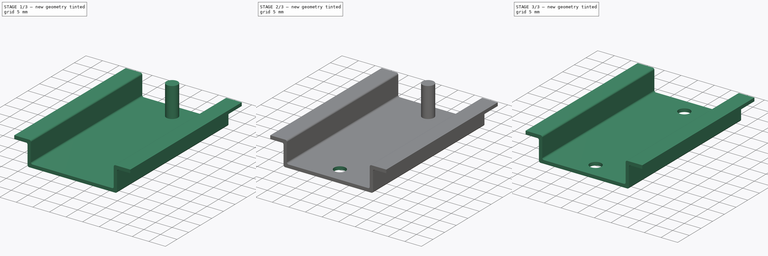
[diagram: build sequence overview — one tinted view per stage of 3, left to right]
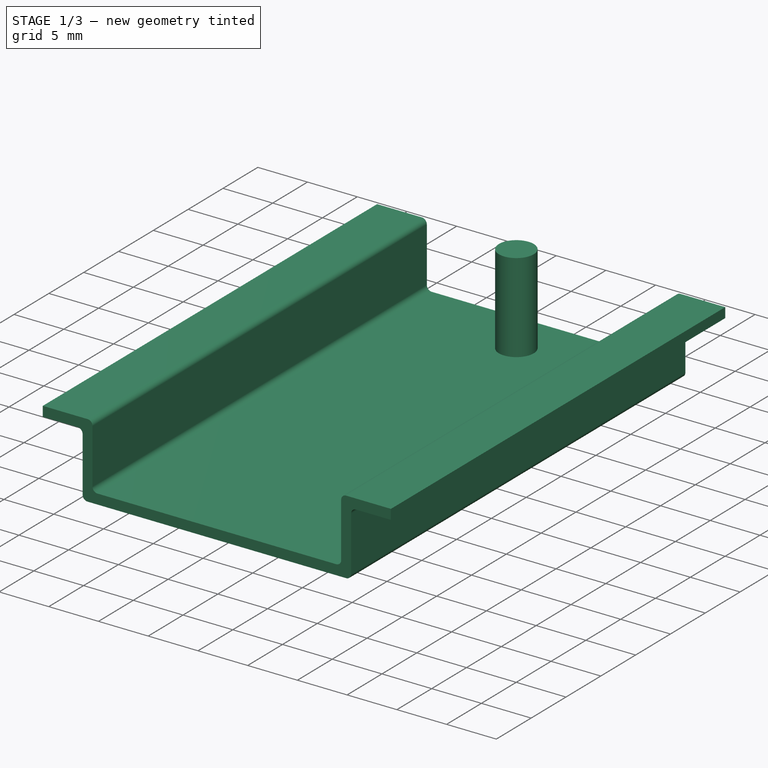
[diagram: stage 1 of 3 — iso view after this stage's code; geometry added in this stage tinted green]
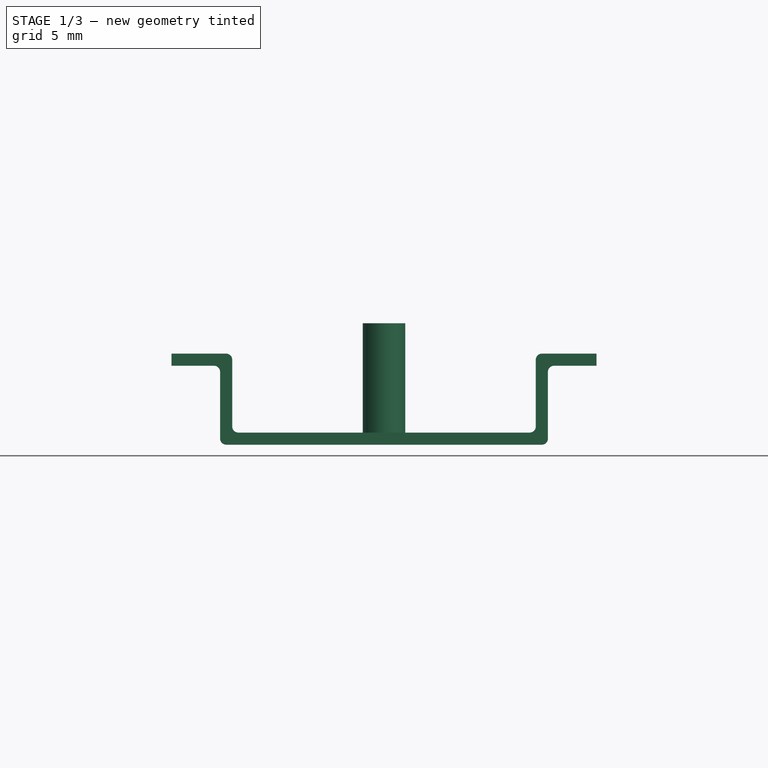
[diagram: stage 1 of 3 — front view after this stage's code; geometry added in this stage tinted green]
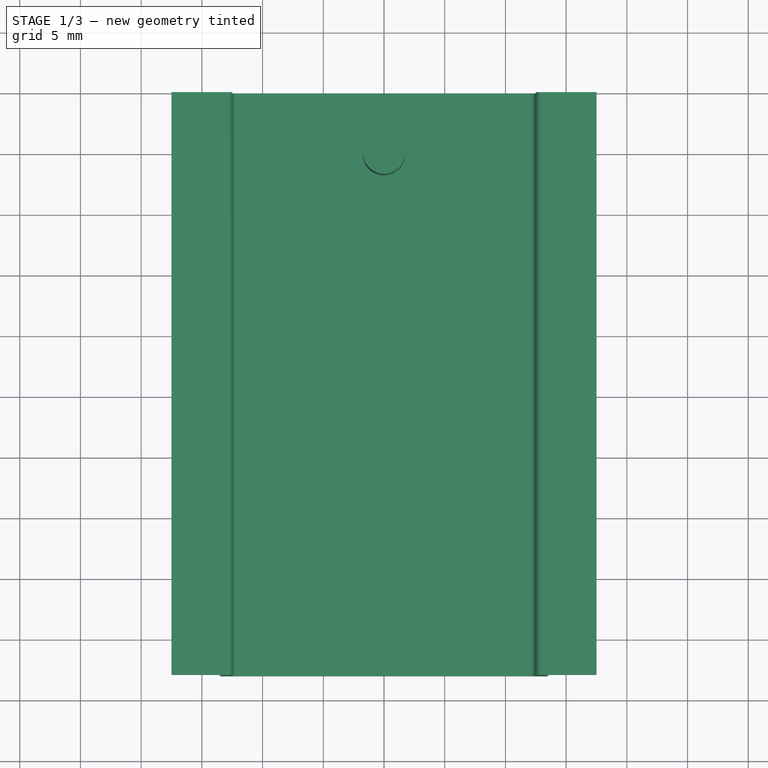
[diagram: stage 1 of 3 — top view after this stage's code; geometry added in this stage tinted green]
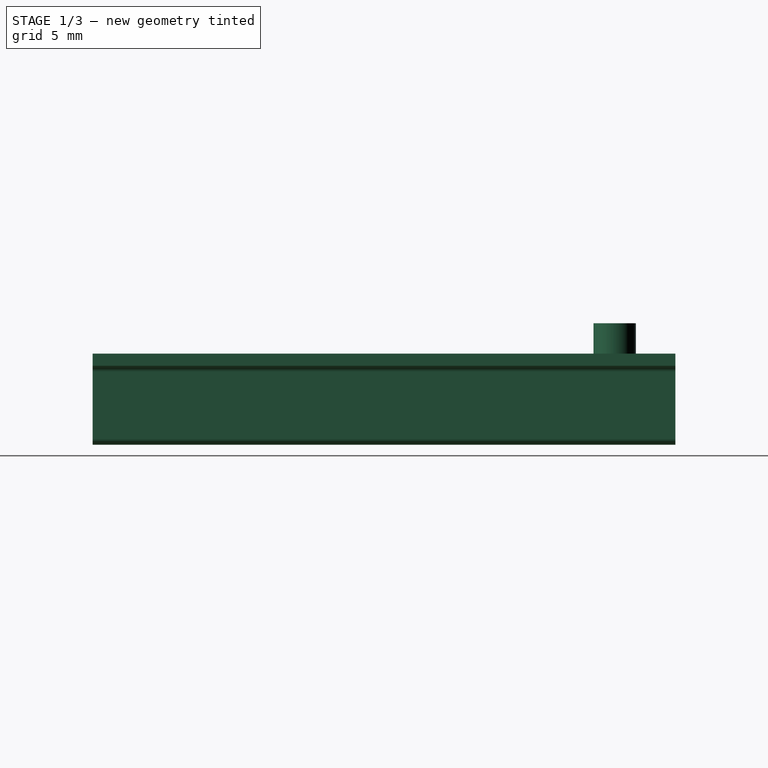
[diagram: stage 1 of 3 — right view after this stage's code; geometry added in this stage tinted green]
FCSTD DOCUMENT  (FreeCAD 0.16R6712 (Git))
Label: din
License: CreativeCommons Attribution-ShareAlike
LicenseURL: http://creativecommons.org/licenses/by-sa/4.0/
objects: Sketcher::SketchObject×2, Spreadsheet::Sheet×1, PartDesign::Pad×1, PartDesign::Pocket×1, Part::MultiCommon×1, Part::Cylinder×1, Part::Cut×1
note: 9 computed .brp shape members not serialized (recipe doc carries the construction recipe); baked Part::Feature solids carry a one-line shape summary decoded from their .brp

FEATURE [Sketcher::SketchObject] Sketch
  Placement = pos=(0,0,0) rot=(1,0,0;1.5708rad)
  sketch-geometry (20):
    g0: LineSegment StartX=-17.5 StartY=6.5 StartZ=0 EndX=-14 EndY=6.5 EndZ=0
    g1: LineSegment StartX=-13.5 StartY=6 StartZ=0 EndX=-13.5 EndY=0.5 EndZ=0
    g2: LineSegment StartX=-13 StartY=0 StartZ=0 EndX=13 EndY=0 EndZ=0
    g3: LineSegment StartX=13.5 StartY=0.5 StartZ=0 EndX=13.5 EndY=6 EndZ=0
    g4: LineSegment StartX=14 StartY=6.5 StartZ=0 EndX=17.5 EndY=6.5 EndZ=0
    g5: ArcOfCircle CenterX=-14 CenterY=6 CenterZ=0 NormalX=0 NormalY=0 NormalZ=1 Radius=0.5 StartAngle=0 EndAngle=1.5708
    g6: ArcOfCircle CenterX=-13 CenterY=0.5 CenterZ=0 NormalX=0 NormalY=0 NormalZ=1 Radius=0.5 StartAngle=3.14159 EndAngle=4.71239
    g7: ArcOfCircle CenterX=13 CenterY=0.5 CenterZ=0 NormalX=0 NormalY=0 NormalZ=1 Radius=0.5 StartAngle=4.71239 EndAngle=6.28319
    g8: ArcOfCircle CenterX=14 CenterY=6 CenterZ=0 NormalX=0 NormalY=0 NormalZ=1 Radius=0.5 StartAngle=1.5708 EndAngle=3.14159
    g9: LineSegment StartX=17.5 StartY=6.5 StartZ=0 EndX=17.5 EndY=7.5 EndZ=0
    g10: LineSegment StartX=17.5 StartY=7.5 StartZ=0 EndX=13 EndY=7.5 EndZ=0
    g11: LineSegment StartX=12.5 StartY=7 StartZ=0 EndX=12.5 EndY=1.5 EndZ=0
    g12: LineSegment StartX=12 StartY=1 StartZ=0 EndX=-12 EndY=1 EndZ=0
    g13: LineSegment StartX=-12.5 StartY=1.5 StartZ=0 EndX=-12.5 EndY=7 EndZ=0
    g14: LineSegment StartX=-13 StartY=7.5 StartZ=0 EndX=-17.5 EndY=7.5 EndZ=0
    g15: LineSegment StartX=-17.5 StartY=7.5 StartZ=0 EndX=-17.5 EndY=6.5 EndZ=0
    g16: ArcOfCircle CenterX=-13 CenterY=7 CenterZ=0 NormalX=0 NormalY=0 NormalZ=1 Radius=0.5 StartAngle=0 EndAngle=1.5708
    g17: ArcOfCircle CenterX=-12 CenterY=1.5 CenterZ=0 NormalX=0 NormalY=0 NormalZ=1 Radius=0.5 StartAngle=3.14159 EndAngle=4.71239
    g18: ArcOfCircle CenterX=12 CenterY=1.5 CenterZ=0 NormalX=0 NormalY=0 NormalZ=1 Radius=0.5 StartAngle=4.71239 EndAngle=6.28319
    g19: ArcOfCircle CenterX=13 CenterY=7 CenterZ=0 NormalX=0 NormalY=0 NormalZ=1 Radius=0.5 StartAngle=1.5708 EndAngle=3.14159
  constraints (52):
    c: Horizontal(g0)
    c: Vertical(g1)
    c: Vertical(g3)
    c: Horizontal(g4)
    c: Tangent(g0,g5) = 1.5708
    c: Tangent(g1,g5) = 1.5708
    c: Tangent(g1,g6) = -1.5708
    c: Tangent(g2,g6) = -1.5708
    c: Tangent(g2,g7) = -1.5708
    c: Tangent(g3,g7) = -1.5708
    c: Tangent(g3,g8) = 1.5708
    c: Tangent(g4,g8) = 1.5708
    c: PointOnObject(g2,g-1)
    c: PointOnObject(g2,g-1)
    c: Symmetric(g2,g2,g-2)
    c: DistanceX(g1,g3) = 27
    c: Vertical(g9)
    c: Coincident(g9,g10)
    c: Horizontal(g10)
    c: Vertical(g11)
    c: Horizontal(g12)
    c: Vertical(g13)
    c: Horizontal(g14)
    c: Coincident(g14,g15)
    c: Coincident(g15,g0)
    c: Tangent(g14,g16) = -1.5708
    c: Tangent(g13,g16) = -1.5708
    c: Tangent(g13,g17) = 1.5708
    c: Tangent(g12,g17) = 1.5708
    c: Tangent(g12,g18) = 1.5708
    c: Tangent(g11,g18) = 1.5708
    c: Tangent(g11,g19) = -1.5708
    c: Tangent(g10,g19) = -1.5708
    c: Symmetric(g12,g12,g-2)
    c: Vertical(g15)
    c: DistanceY(g-1,g12) = 1
    c: DistanceY(g-1,g9) = 7.5
    c: DistanceX(g14,g9) = 35
    c: Coincident(g9,g4)
    c: Equal(g15,g9)
    c: DistanceY(g9,g9) = 1
    c: Equal(g5,g16)
    c: Equal(g16,g17)
    c: Equal(g17,g6)
    c: Equal(g6,g18)
    c: Equal(g18,g7)
    c: Equal(g7,g8)
    c: Equal(g8,g19)
    c: Equal(g1,g3)
    c: DistanceX(g11,g3) = 1
    c: Radius(g16) = 0.5
    c: Equal(g0,g4)
FEATURE [Spreadsheet::Sheet] Spreadsheet
  cells = A2=longitud; B2(longitud)=48; A3=; B3=
FEATURE [PartDesign::Pad] Pad
  Length = 48
  Length2 = 100
  Placement = pos=(0,0,0) rot=(1,0,0;1.5708rad)
  Sketch = -> Sketch
  Type = 0
  expr: Length = Spreadsheet.longitud
FEATURE [Part::Cylinder] Cylinder
  Angle = 360
  Height = 10
  Placement = pos=(0,-5,0) rot=(0,0,1;0rad)
  Radius = 1.75
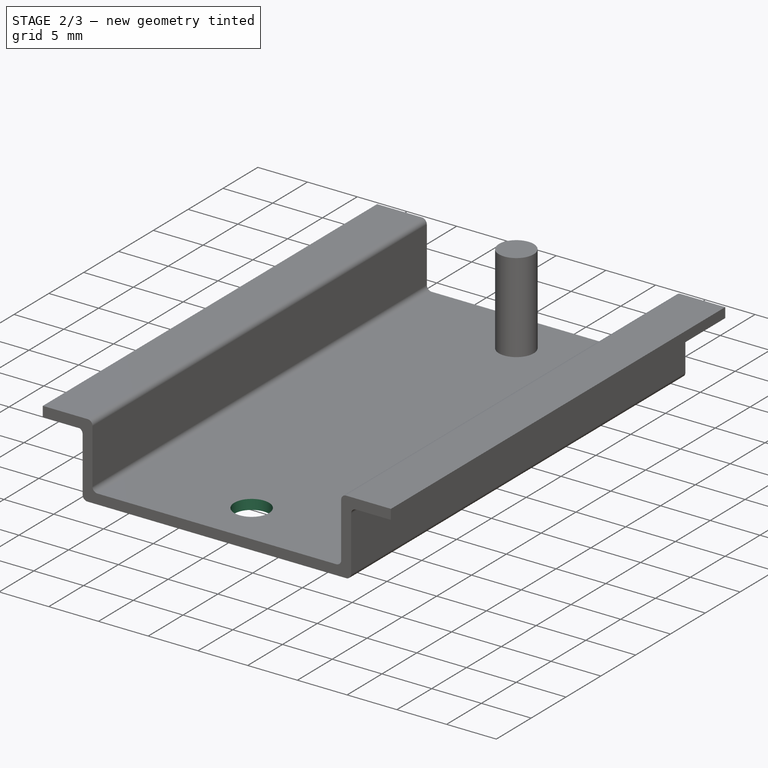
[diagram: stage 2 of 3 — iso view after this stage's code; geometry added in this stage tinted green]
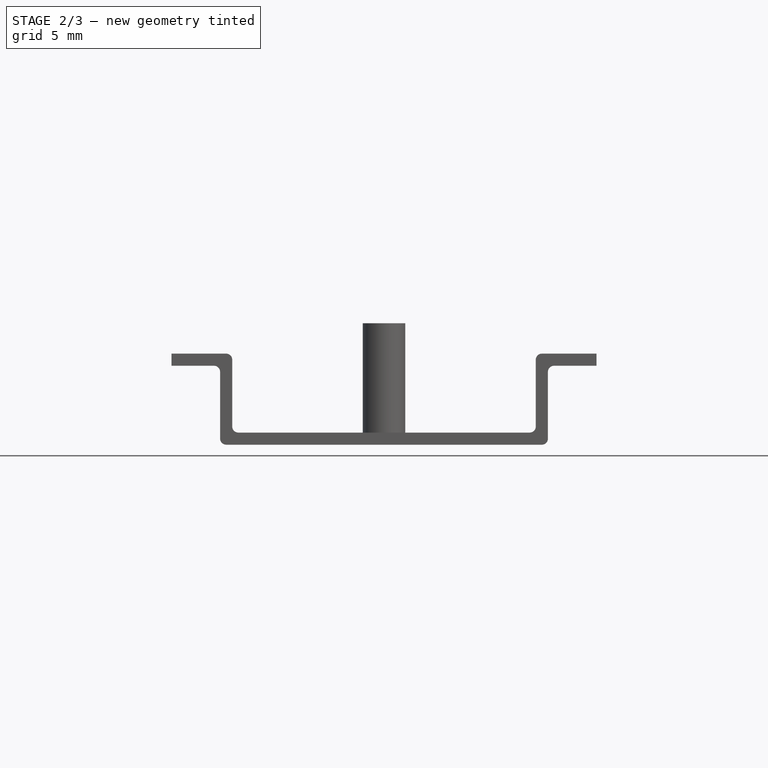
[diagram: stage 2 of 3 — front view after this stage's code; geometry added in this stage tinted green]
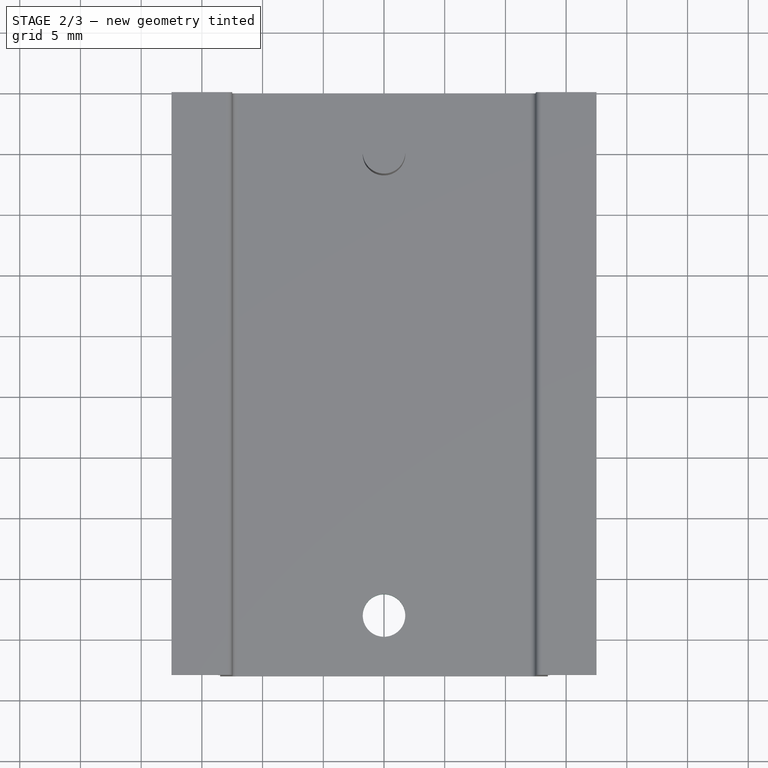
[diagram: stage 2 of 3 — top view after this stage's code; geometry added in this stage tinted green]
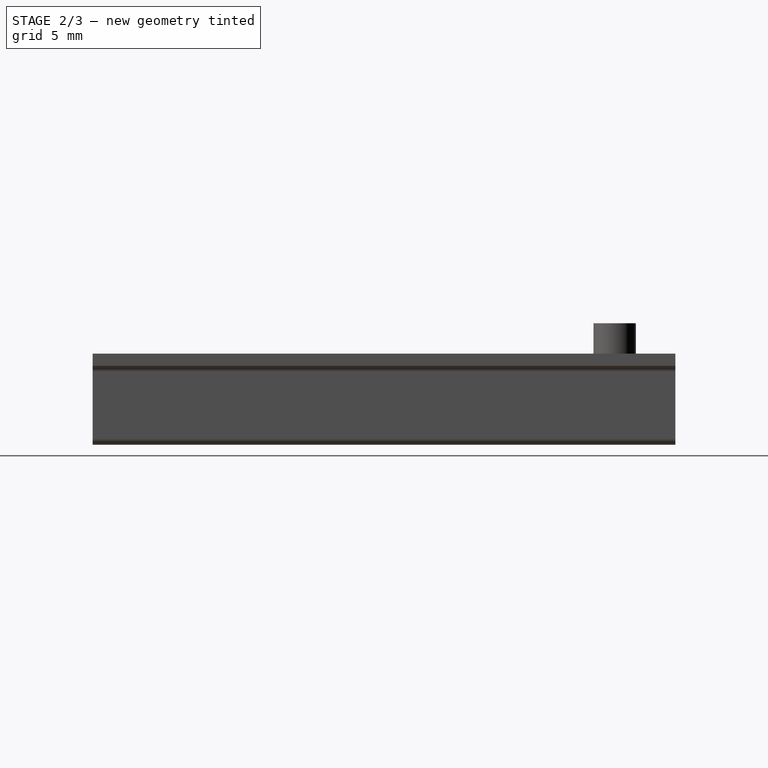
[diagram: stage 2 of 3 — right view after this stage's code; geometry added in this stage tinted green]
FEATURE [Sketcher::SketchObject] Sketch001
  ExternalGeometry = -> [Pad]
  Placement = pos=(0,0,1) rot=(0,0,1;3.14159rad)
  Support = -> Pad [Face19]
  sketch-geometry (1):
    g0: Circle CenterX=0 CenterY=43 CenterZ=0 NormalX=0 NormalY=0 NormalZ=1 Radius=1.75
  constraints (3):
    c: PointOnObject(g0,g-2)
    c: DistanceY(g0,g-3) = 5
    c: Radius(g0) = 1.75
FEATURE [PartDesign::Pocket] Pocket
  Length = 5
  Placement = pos=(0,0,0) rot=(1,0,0;1.5708rad)
  Sketch = -> Sketch001
  Type = 0
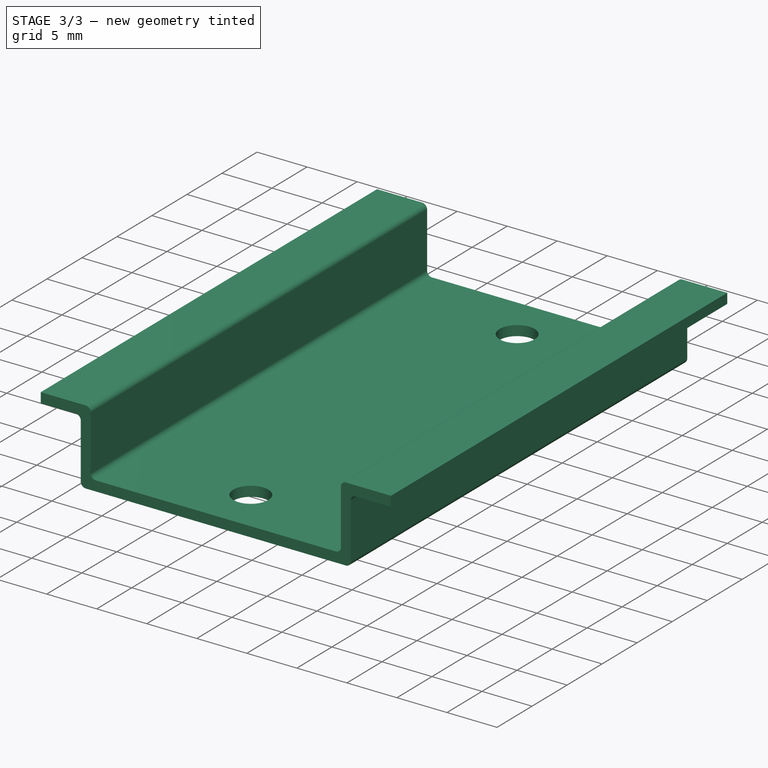
[diagram: stage 3 of 3 — iso view after this stage's code; geometry added in this stage tinted green]
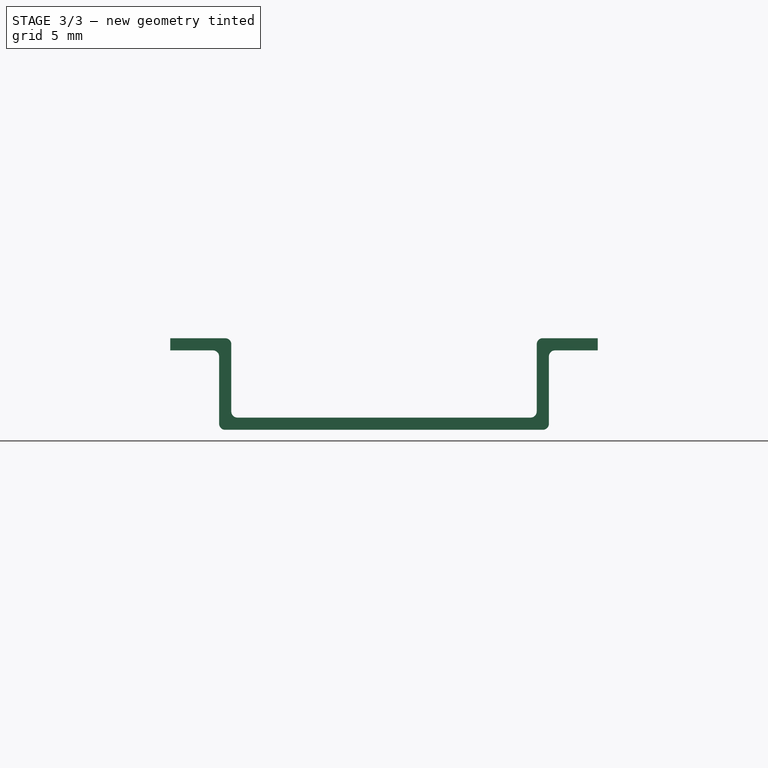
[diagram: stage 3 of 3 — front view after this stage's code; geometry added in this stage tinted green]
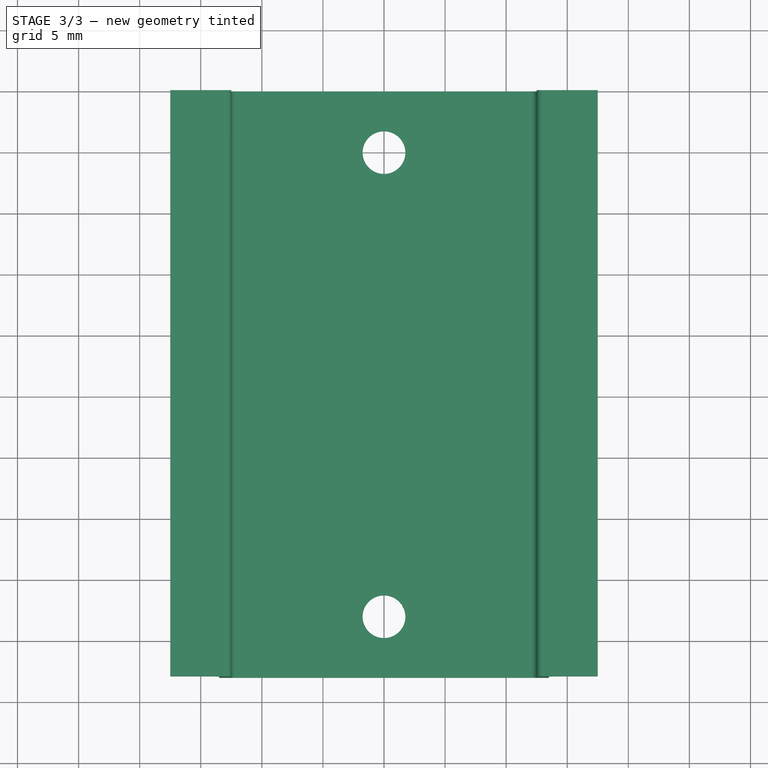
[diagram: stage 3 of 3 — top view after this stage's code; geometry added in this stage tinted green]
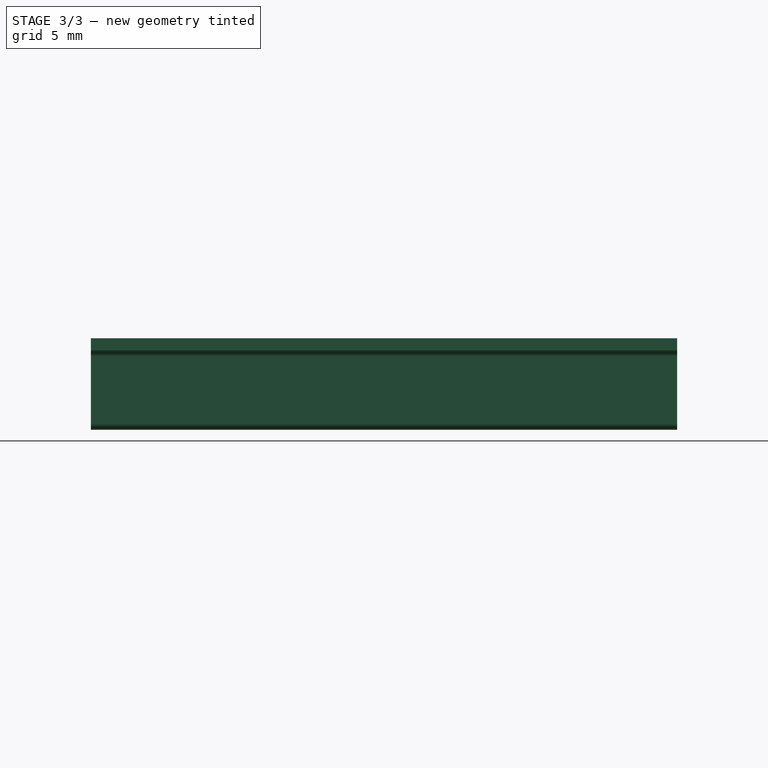
[diagram: stage 3 of 3 — right view after this stage's code; geometry added in this stage tinted green]
FEATURE [Part::MultiCommon] Common
  Shapes = -> [Pocket,Pad]
FEATURE [Part::Cut] Cut
  Base = -> Common
  Tool = -> Cylinder
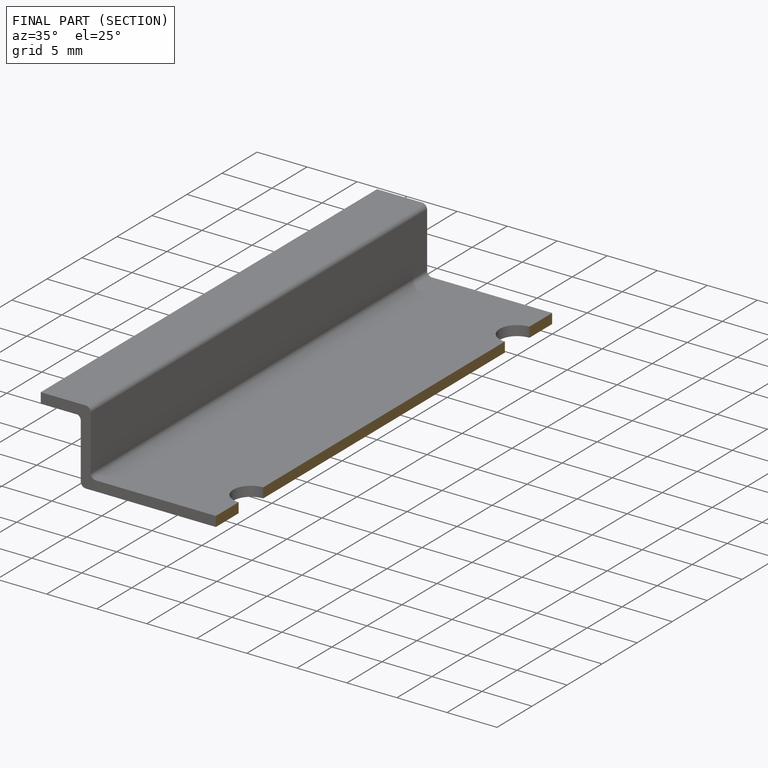
[diagram: finished part — half-section view (interior)]
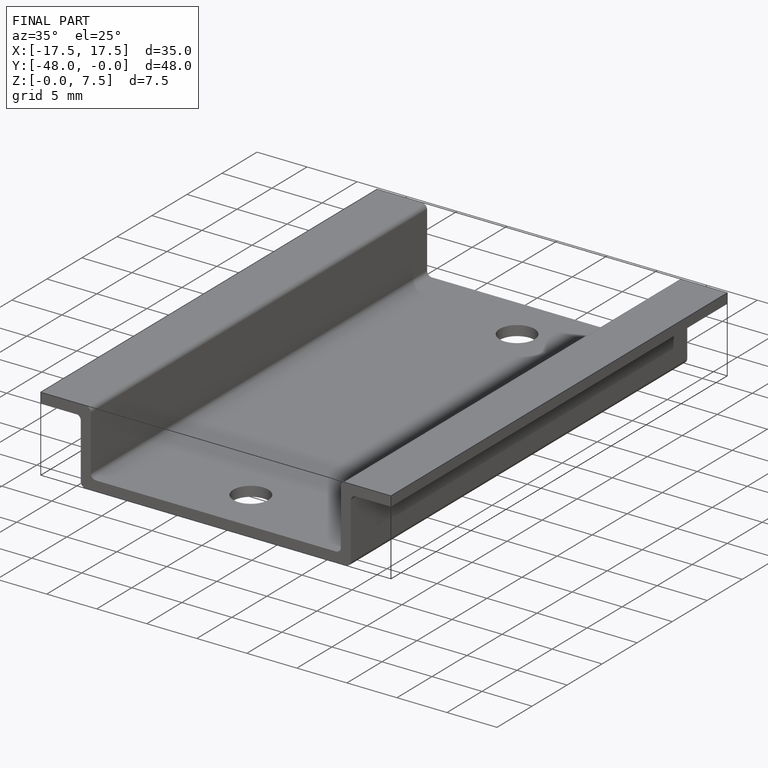
[diagram: finished part — iso view with bounding-box wireframe]
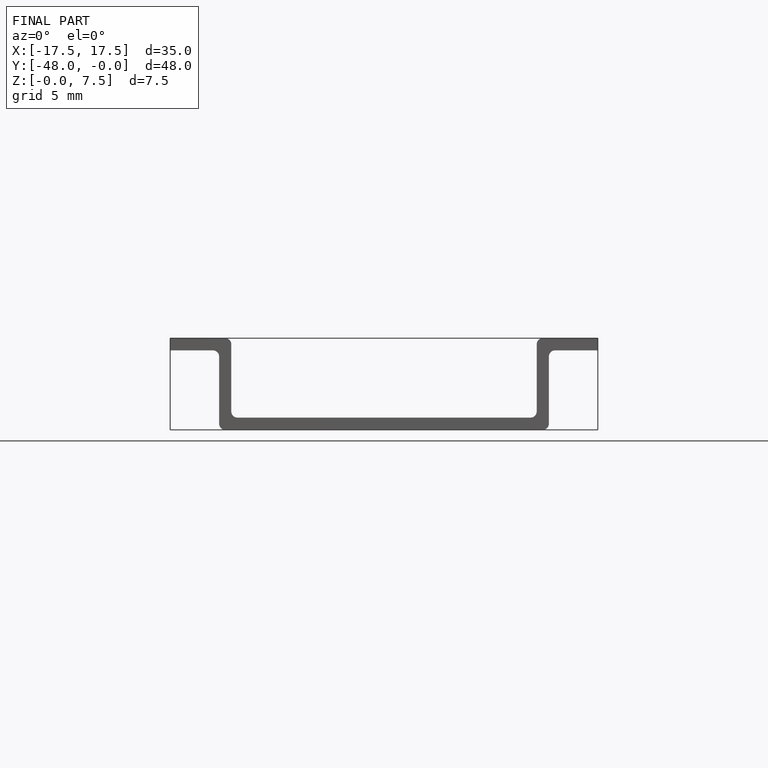
[diagram: finished part — front view with bounding-box wireframe]
